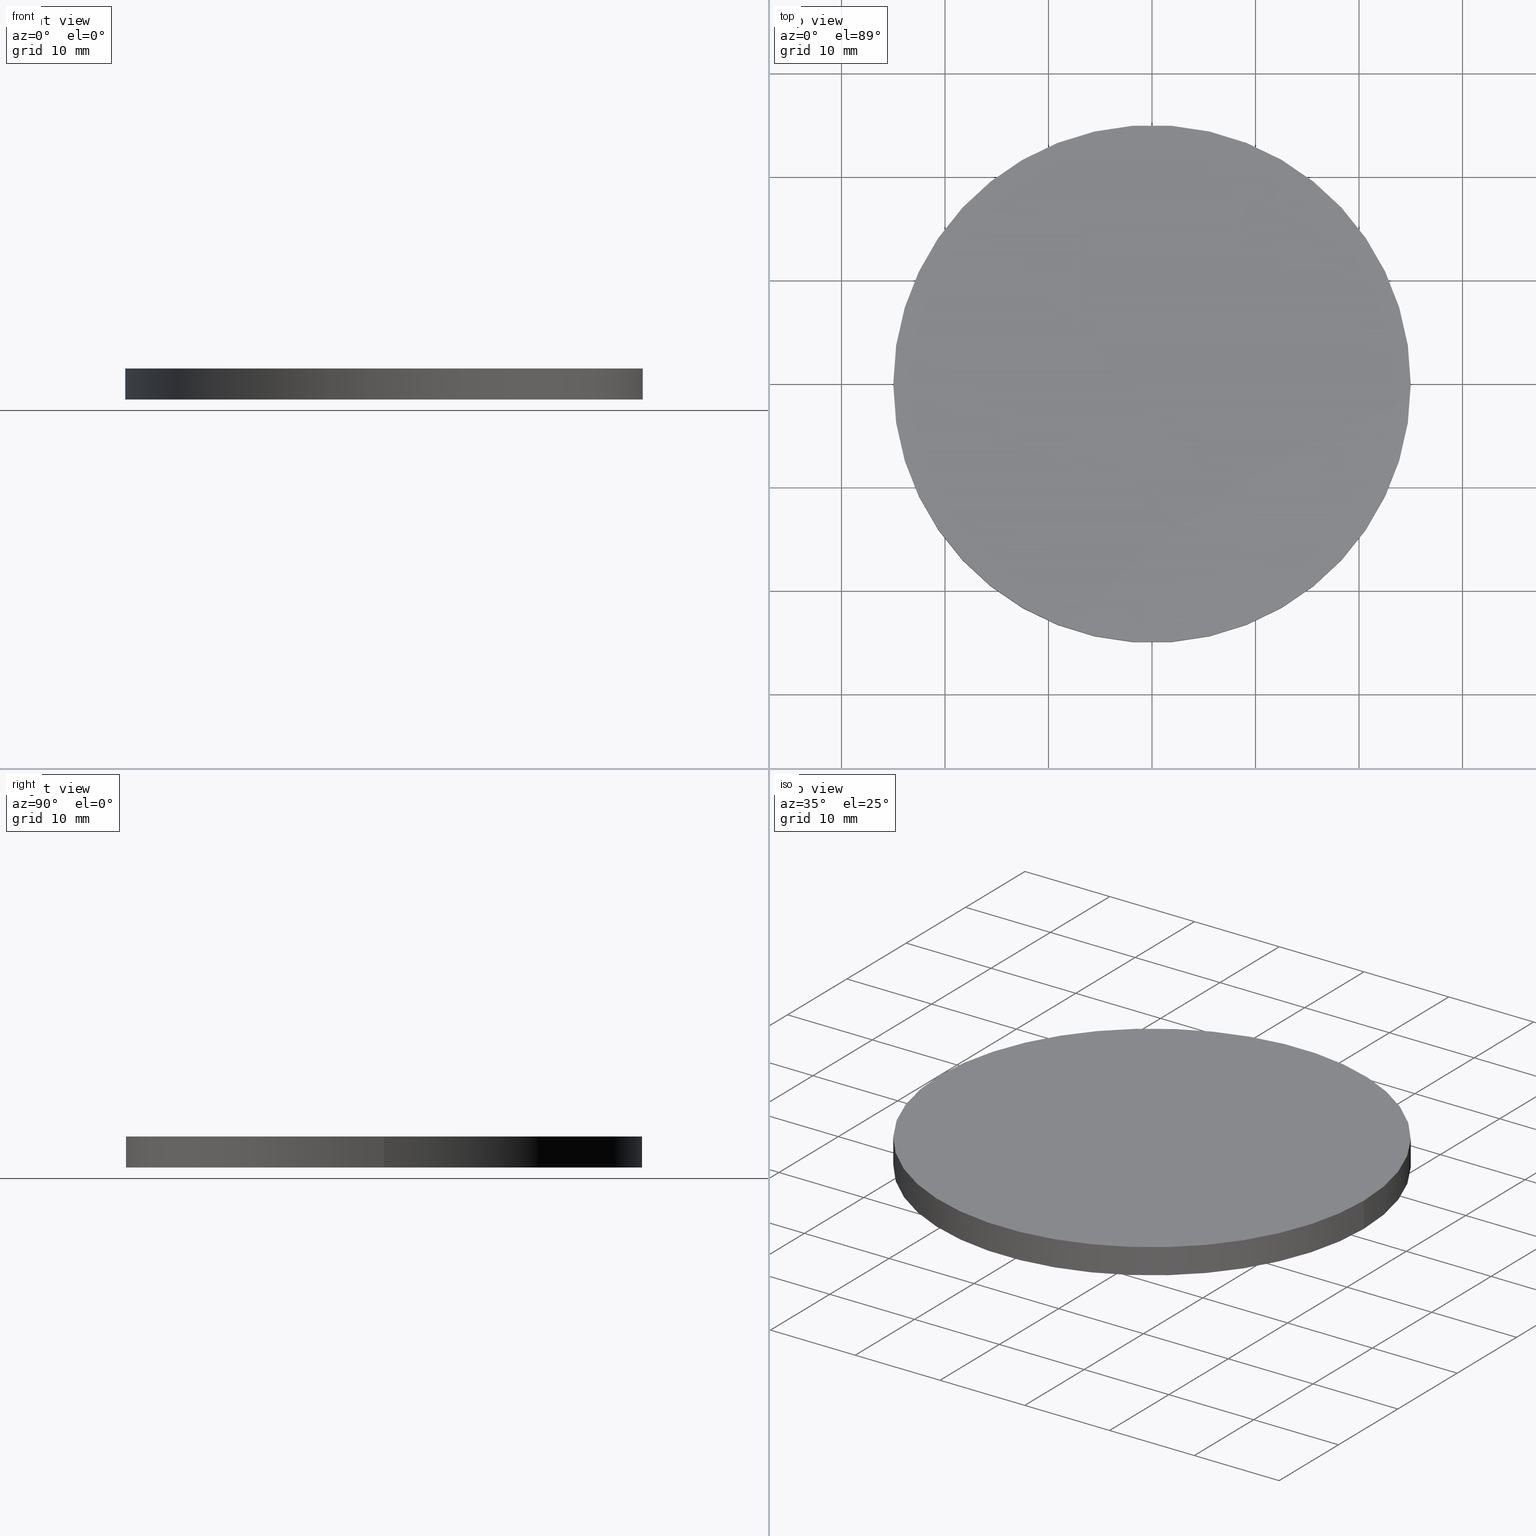
[diagram: canonical four-view strip — front | top / right | iso, engineering-drawing reading convention]
A machine part, canonical four-view strip (front | top / right | iso — engineering-drawing reading convention). The complete STEP part file that produces these views, byte-faithful:
ISO-10303-21;
HEADER;
FILE_DESCRIPTION (( 'STEP AP214' ),
    '1' );
FILE_NAME ('190168.STEP',
    '2019-07-18T08:41:41',
    ( 'user' ),
    ( '΢���й�' ),
    'SwSTEP 2.0',
    'SolidWorks 2016',
    '' );
FILE_SCHEMA (( 'AUTOMOTIVE_DESIGN' ));
ENDSEC;

DATA;
#1 = STYLED_ITEM ( 'NONE', ( #5 ), #49 ) ;
#2 = MECHANICAL_DESIGN_GEOMETRIC_PRESENTATION_REPRESENTATION (  '', ( #88 ), #19 ) ;
#3 = PRESENTATION_LAYER_ASSIGNMENT (  '', '', ( #1 ) ) ;
#4 = DIRECTION ( 'NONE',  ( -1.000000000000000000, 0.0000000000000000000, 0.0000000000000000000 ) ) ;
#5 = PRESENTATION_STYLE_ASSIGNMENT (( #73 ) ) ;
#6 = AXIS2_PLACEMENT_3D ( 'NONE', #41, #121, #43 ) ;
#7 = CYLINDRICAL_SURFACE ( 'NONE', #128, 25.00000000000000000 ) ;
#8 = PRODUCT_DEFINITION ( 'δ֪', '', #21, #85 ) ;
#9 = CARTESIAN_POINT ( 'NONE',  ( 0.0000000000000000000, 0.0000000000000000000, 0.0000000000000000000 ) ) ;
#10 = PRESENTATION_LAYER_ASSIGNMENT (  '', '', ( #88 ) ) ;
#11 = FILL_AREA_STYLE ('',( #69 ) ) ;
#12 = AXIS2_PLACEMENT_3D ( 'NONE', #56, #84, #27 ) ;
#13 = DIRECTION ( 'NONE',  ( -0.0000000000000000000, -0.0000000000000000000, -1.000000000000000000 ) ) ;
#14 = SURFACE_STYLE_FILL_AREA ( #11 ) ;
#15 =( NAMED_UNIT ( * ) SI_UNIT ( $, .STERADIAN. ) SOLID_ANGLE_UNIT ( ) );
#16 = COLOUR_RGB ( '',1.000000000000000000, 1.000000000000000000, 1.000000000000000000 ) ;
#17 = FILL_AREA_STYLE_COLOUR ( '', #72 ) ;
#18 =( LENGTH_UNIT ( ) NAMED_UNIT ( * ) SI_UNIT ( .MILLI., .METRE. ) );
#19 =( GEOMETRIC_REPRESENTATION_CONTEXT ( 3 ) GLOBAL_UNCERTAINTY_ASSIGNED_CONTEXT ( ( #70 ) ) GLOBAL_UNIT_ASSIGNED_CONTEXT ( ( #57, #24, #15 ) ) REPRESENTATION_CONTEXT ( 'NONE', 'WORKASPACE' ) );
#20 =( NAMED_UNIT ( * ) SI_UNIT ( $, .STERADIAN. ) SOLID_ANGLE_UNIT ( ) );
#21 = PRODUCT_DEFINITION_FORMATION_WITH_SPECIFIED_SOURCE ( '�κ�', '', #58, .NOT_KNOWN. ) ;
#22 = EDGE_LOOP ( 'NONE', ( #103, #118 ) ) ;
#23 = CARTESIAN_POINT ( 'NONE',  ( 25.00000000000000000, 3.061616997868383000E-015, 0.0000000000000000000 ) ) ;
#24 =( NAMED_UNIT ( * ) PLANE_ANGLE_UNIT ( ) SI_UNIT ( $, .RADIAN. ) );
#25 = PRODUCT_RELATED_PRODUCT_CATEGORY ( 'part', '', ( #58 ) ) ;
#26 = APPLICATION_CONTEXT ( 'automotive_design' ) ;
#27 = DIRECTION ( 'NONE',  ( 1.000000000000000000, 0.0000000000000000000, 0.0000000000000000000 ) ) ;
#28 = CYLINDRICAL_SURFACE ( 'NONE', #30, 25.00000000000000000 ) ;
#29 = UNCERTAINTY_MEASURE_WITH_UNIT (LENGTH_MEASURE( 1.000000000000000100E-005 ), #99, 'distance_accuracy_value', 'NONE');
#30 = AXIS2_PLACEMENT_3D ( 'NONE', #55, #101, #62 ) ;
#31 = DIRECTION ( 'NONE',  ( 1.000000000000000000, 0.0000000000000000000, 0.0000000000000000000 ) ) ;
#32 = VERTEX_POINT ( 'NONE', #36 ) ;
#33 = LINE ( 'NONE', #67, #94 ) ;
#34 = ORIENTED_EDGE ( 'NONE', *, *, #60, .T. ) ;
#35 = EDGE_CURVE ( 'NONE', #95, #32, #139, .T. ) ;
#36 = CARTESIAN_POINT ( 'NONE',  ( -25.00000000000000000, 0.0000000000000000000, 0.0000000000000000000 ) ) ;
#37 = DIRECTION ( 'NONE',  ( 0.0000000000000000000, 0.0000000000000000000, 1.000000000000000000 ) ) ;
#38 = UNCERTAINTY_MEASURE_WITH_UNIT (LENGTH_MEASURE( 1.000000000000000100E-005 ), #18, 'distance_accuracy_value', 'NONE');
#39 = AXIS2_PLACEMENT_3D ( 'NONE', #127, #74, #108 ) ;
#40 = CIRCLE ( 'NONE', #87, 25.00000000000000000 ) ;
#41 = CARTESIAN_POINT ( 'NONE',  ( 0.0000000000000000000, 0.0000000000000000000, 3.000000000000000000 ) ) ;
#42 = CARTESIAN_POINT ( 'NONE',  ( 25.00000000000000000, 3.061616997868383000E-015, 3.000000000000000000 ) ) ;
#43 = DIRECTION ( 'NONE',  ( 1.000000000000000000, 0.0000000000000000000, -0.0000000000000000000 ) ) ;
#44 = DIRECTION ( 'NONE',  ( 0.0000000000000000000, 0.0000000000000000000, 1.000000000000000000 ) ) ;
#45 = PRODUCT_DEFINITION_SHAPE ( 'NONE', 'NONE',  #8 ) ;
#46 = PLANE ( 'NONE',  #135 ) ;
#47 = ORIENTED_EDGE ( 'NONE', *, *, #119, .T. ) ;
#48 = FILL_AREA_STYLE ('',( #17 ) ) ;
#49 = ADVANCED_BREP_SHAPE_REPRESENTATION ( '190168', ( #130, #138 ), #134 ) ;
#50 = EDGE_LOOP ( 'NONE', ( #51, #34, #81, #113 ) ) ;
#51 = ORIENTED_EDGE ( 'NONE', *, *, #119, .F. ) ;
#52 = FACE_OUTER_BOUND ( 'NONE', #50, .T. ) ;
#53 = EDGE_LOOP ( 'NONE', ( #59, #47 ) ) ;
#54 = EDGE_CURVE ( 'NONE', #32, #95, #40, .T. ) ;
#55 = CARTESIAN_POINT ( 'NONE',  ( 0.0000000000000000000, 0.0000000000000000000, 3.000000000000000000 ) ) ;
#56 = CARTESIAN_POINT ( 'NONE',  ( 0.0000000000000000000, 0.0000000000000000000, 0.0000000000000000000 ) ) ;
#57 =( LENGTH_UNIT ( ) NAMED_UNIT ( * ) SI_UNIT ( .MILLI., .METRE. ) );
#58 = PRODUCT ( '190168', '190168', '', ( #120 ) ) ;
#59 = ORIENTED_EDGE ( 'NONE', *, *, #106, .T. ) ;
#60 = EDGE_CURVE ( 'NONE', #97, #95, #33, .T. ) ;
#61 = CARTESIAN_POINT ( 'NONE',  ( 0.0000000000000000000, 0.0000000000000000000, 3.000000000000000000 ) ) ;
#62 = DIRECTION ( 'NONE',  ( -1.000000000000000000, 0.0000000000000000000, 0.0000000000000000000 ) ) ;
#63 = ORIENTED_EDGE ( 'NONE', *, *, #106, .F. ) ;
#64 =( NAMED_UNIT ( * ) PLANE_ANGLE_UNIT ( ) SI_UNIT ( $, .RADIAN. ) );
#65 = DIRECTION ( 'NONE',  ( 1.000000000000000000, 0.0000000000000000000, 0.0000000000000000000 ) ) ;
#66 = CARTESIAN_POINT ( 'NONE',  ( 0.0000000000000000000, 0.0000000000000000000, 3.000000000000000000 ) ) ;
#67 = CARTESIAN_POINT ( 'NONE',  ( 25.00000000000000000, 3.061616997868383000E-015, 3.000000000000000000 ) ) ;
#68 = SURFACE_SIDE_STYLE ('',( #82 ) ) ;
#69 = FILL_AREA_STYLE_COLOUR ( '', #16 ) ;
#70 = UNCERTAINTY_MEASURE_WITH_UNIT (LENGTH_MEASURE( 1.000000000000000100E-005 ), #57, 'distance_accuracy_value', 'NONE');
#71 = ADVANCED_FACE ( 'NONE', ( #131 ), #93, .T. ) ;
#72 = COLOUR_RGB ( '',1.000000000000000000, 1.000000000000000000, 1.000000000000000000 ) ;
#73 = SURFACE_STYLE_USAGE ( .BOTH. , #89 ) ;
#74 = DIRECTION ( 'NONE',  ( 0.0000000000000000000, 0.0000000000000000000, 1.000000000000000000 ) ) ;
#75 = EDGE_CURVE ( 'NONE', #98, #32, #124, .T. ) ;
#76 = EDGE_LOOP ( 'NONE', ( #92, #63, #137, #86 ) ) ;
#77 =( NAMED_UNIT ( * ) PLANE_ANGLE_UNIT ( ) SI_UNIT ( $, .RADIAN. ) );
#78 = DIRECTION ( 'NONE',  ( -0.0000000000000000000, -0.0000000000000000000, -1.000000000000000000 ) ) ;
#79 = CIRCLE ( 'NONE', #39, 25.00000000000000000 ) ;
#80 = PRESENTATION_STYLE_ASSIGNMENT (( #115 ) ) ;
#81 = ORIENTED_EDGE ( 'NONE', *, *, #35, .T. ) ;
#82 = SURFACE_STYLE_FILL_AREA ( #48 ) ;
#83 = APPLICATION_PROTOCOL_DEFINITION ( 'draft international standard', 'automotive_design', 1998, #26 ) ;
#84 = DIRECTION ( 'NONE',  ( 0.0000000000000000000, 0.0000000000000000000, 1.000000000000000000 ) ) ;
#85 = PRODUCT_DEFINITION_CONTEXT ( 'detailed design', #26, 'design' ) ;
#86 = ORIENTED_EDGE ( 'NONE', *, *, #54, .T. ) ;
#87 = AXIS2_PLACEMENT_3D ( 'NONE', #9, #37, #31 ) ;
#88 = STYLED_ITEM ( 'NONE', ( #80 ), #130 ) ;
#89 = SURFACE_SIDE_STYLE ('',( #14 ) ) ;
#90 = CARTESIAN_POINT ( 'NONE',  ( -25.00000000000000000, 0.0000000000000000000, 3.000000000000000000 ) ) ;
#91 = ADVANCED_FACE ( 'NONE', ( #107 ), #46, .F. ) ;
#92 = ORIENTED_EDGE ( 'NONE', *, *, #60, .F. ) ;
#93 = PLANE ( 'NONE',  #6 ) ;
#94 = VECTOR ( 'NONE', #96, 1000.000000000000000 ) ;
#95 = VERTEX_POINT ( 'NONE', #23 ) ;
#96 = DIRECTION ( 'NONE',  ( -0.0000000000000000000, -0.0000000000000000000, -1.000000000000000000 ) ) ;
#97 = VERTEX_POINT ( 'NONE', #42 ) ;
#98 = VERTEX_POINT ( 'NONE', #110 ) ;
#99 =( LENGTH_UNIT ( ) NAMED_UNIT ( * ) SI_UNIT ( .MILLI., .METRE. ) );
#100 = DIRECTION ( 'NONE',  ( 1.000000000000000000, 0.0000000000000000000, -0.0000000000000000000 ) ) ;
#101 = DIRECTION ( 'NONE',  ( -0.0000000000000000000, -0.0000000000000000000, -1.000000000000000000 ) ) ;
#102 = APPLICATION_CONTEXT ( 'automotive_design' ) ;
#103 = ORIENTED_EDGE ( 'NONE', *, *, #54, .F. ) ;
#104 = SHAPE_DEFINITION_REPRESENTATION ( #45, #49 ) ;
#105 = MECHANICAL_DESIGN_GEOMETRIC_PRESENTATION_REPRESENTATION (  '', ( #1 ), #112 ) ;
#106 = EDGE_CURVE ( 'NONE', #98, #97, #122, .T. ) ;
#107 = FACE_OUTER_BOUND ( 'NONE', #22, .T. ) ;
#108 = DIRECTION ( 'NONE',  ( 1.000000000000000000, 0.0000000000000000000, 0.0000000000000000000 ) ) ;
#109 = CARTESIAN_POINT ( 'NONE',  ( 0.0000000000000000000, 0.0000000000000000000, 0.0000000000000000000 ) ) ;
#110 = CARTESIAN_POINT ( 'NONE',  ( -25.00000000000000000, 0.0000000000000000000, 3.000000000000000000 ) ) ;
#111 = DIRECTION ( 'NONE',  ( 1.000000000000000000, 0.0000000000000000000, 0.0000000000000000000 ) ) ;
#112 =( GEOMETRIC_REPRESENTATION_CONTEXT ( 3 ) GLOBAL_UNCERTAINTY_ASSIGNED_CONTEXT ( ( #38 ) ) GLOBAL_UNIT_ASSIGNED_CONTEXT ( ( #18, #77, #20 ) ) REPRESENTATION_CONTEXT ( 'NONE', 'WORKASPACE' ) );
#113 = ORIENTED_EDGE ( 'NONE', *, *, #75, .F. ) ;
#114 = DIRECTION ( 'NONE',  ( 0.0000000000000000000, 0.0000000000000000000, 1.000000000000000000 ) ) ;
#115 = SURFACE_STYLE_USAGE ( .BOTH. , #68 ) ;
#116 = FACE_OUTER_BOUND ( 'NONE', #76, .T. ) ;
#117 = ADVANCED_FACE ( 'NONE', ( #52 ), #28, .T. ) ;
#118 = ORIENTED_EDGE ( 'NONE', *, *, #35, .F. ) ;
#119 = EDGE_CURVE ( 'NONE', #97, #98, #79, .T. ) ;
#120 = PRODUCT_CONTEXT ( 'NONE', #102, 'mechanical' ) ;
#121 = DIRECTION ( 'NONE',  ( 0.0000000000000000000, 0.0000000000000000000, 1.000000000000000000 ) ) ;
#122 = CIRCLE ( 'NONE', #129, 25.00000000000000000 ) ;
#123 =( NAMED_UNIT ( * ) SI_UNIT ( $, .STERADIAN. ) SOLID_ANGLE_UNIT ( ) );
#124 = LINE ( 'NONE', #90, #132 ) ;
#125 = CLOSED_SHELL ( 'NONE', ( #117, #126, #71, #91 ) ) ;
#126 = ADVANCED_FACE ( 'NONE', ( #116 ), #7, .T. ) ;
#127 = CARTESIAN_POINT ( 'NONE',  ( 0.0000000000000000000, 0.0000000000000000000, 3.000000000000000000 ) ) ;
#128 = AXIS2_PLACEMENT_3D ( 'NONE', #66, #78, #4 ) ;
#129 = AXIS2_PLACEMENT_3D ( 'NONE', #61, #114, #65 ) ;
#130 = MANIFOLD_SOLID_BREP ( '͹̨-����1', #125 ) ;
#131 = FACE_OUTER_BOUND ( 'NONE', #53, .T. ) ;
#132 = VECTOR ( 'NONE', #13, 1000.000000000000000 ) ;
#133 = CARTESIAN_POINT ( 'NONE',  ( 0.0000000000000000000, 0.0000000000000000000, 0.0000000000000000000 ) ) ;
#134 =( GEOMETRIC_REPRESENTATION_CONTEXT ( 3 ) GLOBAL_UNCERTAINTY_ASSIGNED_CONTEXT ( ( #29 ) ) GLOBAL_UNIT_ASSIGNED_CONTEXT ( ( #99, #64, #123 ) ) REPRESENTATION_CONTEXT ( 'NONE', 'WORKASPACE' ) );
#135 = AXIS2_PLACEMENT_3D ( 'NONE', #133, #136, #100 ) ;
#136 = DIRECTION ( 'NONE',  ( 0.0000000000000000000, 0.0000000000000000000, 1.000000000000000000 ) ) ;
#137 = ORIENTED_EDGE ( 'NONE', *, *, #75, .T. ) ;
#138 = AXIS2_PLACEMENT_3D ( 'NONE', #109, #44, #111 ) ;
#139 = CIRCLE ( 'NONE', #12, 25.00000000000000000 ) ;
#140 = APPLICATION_PROTOCOL_DEFINITION ( 'draft international standard', 'automotive_design', 1998, #102 ) ;
ENDSEC;
END-ISO-10303-21;
